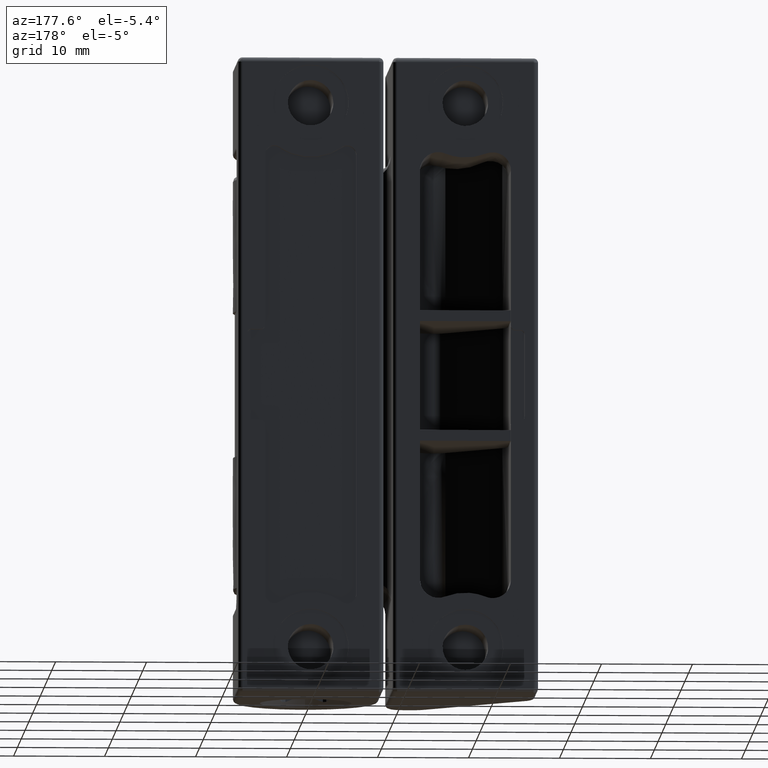
[diagram: clean part render]
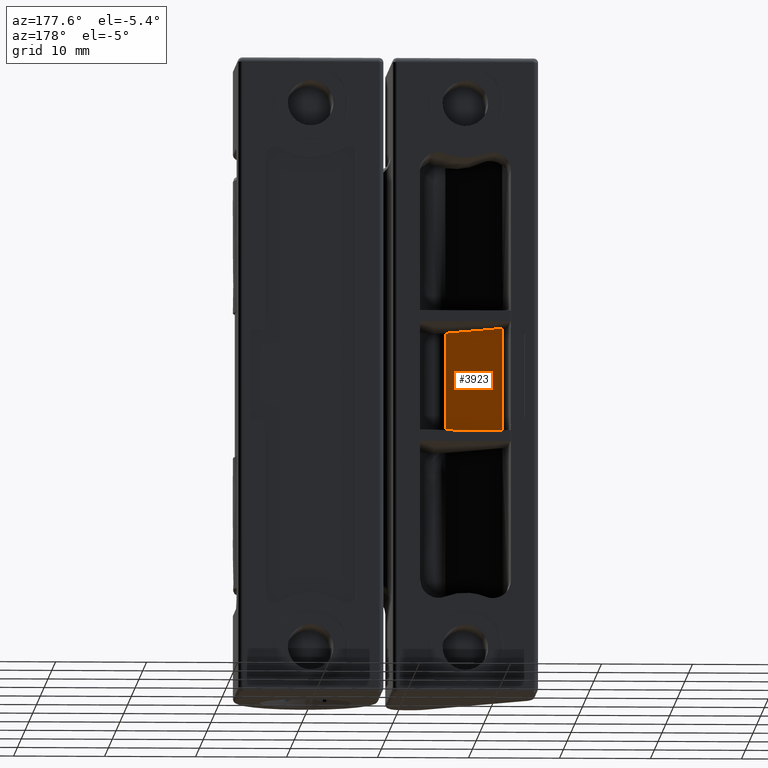
[diagram: same view with one face highlighted and labeled with its STEP entity id]
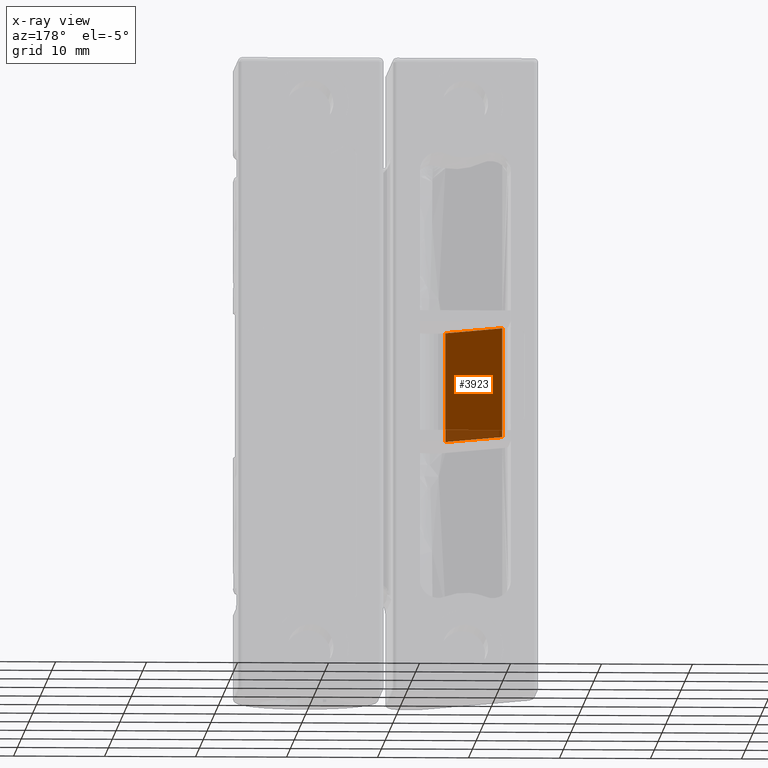
[diagram: x-ray of the same camera — body ghosted, the highlighted face saturated]
A machine part, auxiliary view. The second image highlights one B-rep face of the part: STEP entity #3923.
The next image is the same camera in x-ray: the body ghosted, the highlighted face saturated — about 8% of this face is hidden behind the body in this view.
In plain terms, the highlighted face is a freeform B-spline surface patch.
Its self-contained STEP definition (entity closure, byte-faithful):
#3787=CARTESIAN_POINT('',(-21.414213562373099,4.656854249489000,41.0));
#3788=VERTEX_POINT('',#3787);
#3789=CARTESIAN_POINT('',(-21.414213562373099,4.656854249488980,29.0));
#3790=VERTEX_POINT('',#3789);
#3791=CARTESIAN_POINT('',(-21.414213562373099,4.656854249489000,41.0));
#3792=CARTESIAN_POINT('',(-21.414213562373099,4.656854249488980,29.0));
#3793=QUASI_UNIFORM_CURVE('',1,(#3791,#3792),.UNSPECIFIED.,.F.,.U.);
#3794=EDGE_CURVE('',#3788,#3790,#3793,.T.);
#3861=CARTESIAN_POINT('',(-15.414213562373201,-1.343145750510866,29.0));
#3862=VERTEX_POINT('',#3861);
#3879=CARTESIAN_POINT('',(-15.414213562373201,-1.343145750510870,41.0));
#3880=VERTEX_POINT('',#3879);
#3881=CARTESIAN_POINT('',(-15.414213562373201,-1.343145750510866,29.0));
#3882=CARTESIAN_POINT('',(-15.414213562373201,-1.343145750510870,41.0));
#3883=QUASI_UNIFORM_CURVE('',1,(#3881,#3882),.UNSPECIFIED.,.F.,.U.);
#3884=EDGE_CURVE('',#3862,#3880,#3883,.T.);
#3904=CARTESIAN_POINT('',(-15.114513574002361,-1.642845738881690,28.400600023258320));
#3905=CARTESIAN_POINT('',(-21.713913711676479,4.956554398792362,28.400600023258320));
#3906=CARTESIAN_POINT('',(-15.114513574002361,-1.642845738881690,41.599400298606760));
#3907=CARTESIAN_POINT('',(-21.713913711676479,4.956554398792362,41.599400298606760));
#3908=B_SPLINE_SURFACE_WITH_KNOTS('',1,1,((#3904,#3906),(#3905,#3907)),.UNSPECIFIED.,.F.,.F.,.U.,(2,2),(2,2),(0.0,9.332961178225565),(0.0,13.198800275348439),.UNSPECIFIED.);
#3909=CARTESIAN_POINT('',(-21.414213562373099,4.656854249488980,29.0));
#3910=CARTESIAN_POINT('',(-15.414213562373201,-1.343145750510866,29.0));
#3911=QUASI_UNIFORM_CURVE('',1,(#3909,#3910),.UNSPECIFIED.,.F.,.U.);
#3912=EDGE_CURVE('',#3790,#3862,#3911,.T.);
#3913=ORIENTED_EDGE('',*,*,#3912,.F.);
#3914=ORIENTED_EDGE('',*,*,#3794,.F.);
#3915=CARTESIAN_POINT('',(-21.414213562373099,4.656854249489000,41.0));
#3916=CARTESIAN_POINT('',(-15.414213562373201,-1.343145750510870,41.0));
#3917=QUASI_UNIFORM_CURVE('',1,(#3915,#3916),.UNSPECIFIED.,.F.,.U.);
#3918=EDGE_CURVE('',#3788,#3880,#3917,.T.);
#3919=ORIENTED_EDGE('',*,*,#3918,.T.);
#3920=ORIENTED_EDGE('',*,*,#3884,.F.);
#3921=EDGE_LOOP('',(#3913,#3914,#3919,#3920));
#3922=FACE_OUTER_BOUND('',#3921,.T.);
#3923=ADVANCED_FACE('',(#3922),#3908,.T.);